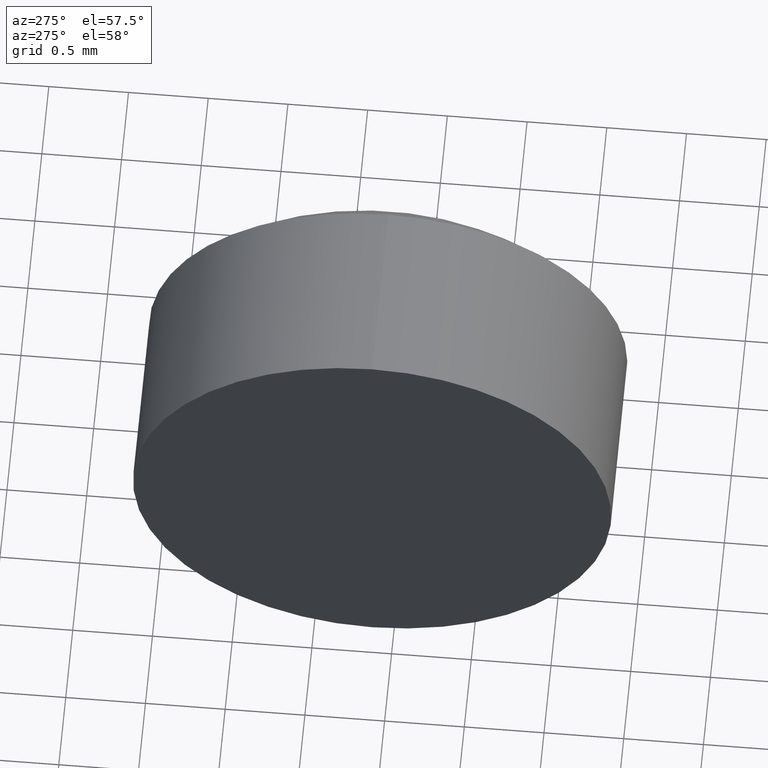
[diagram: clean part render]
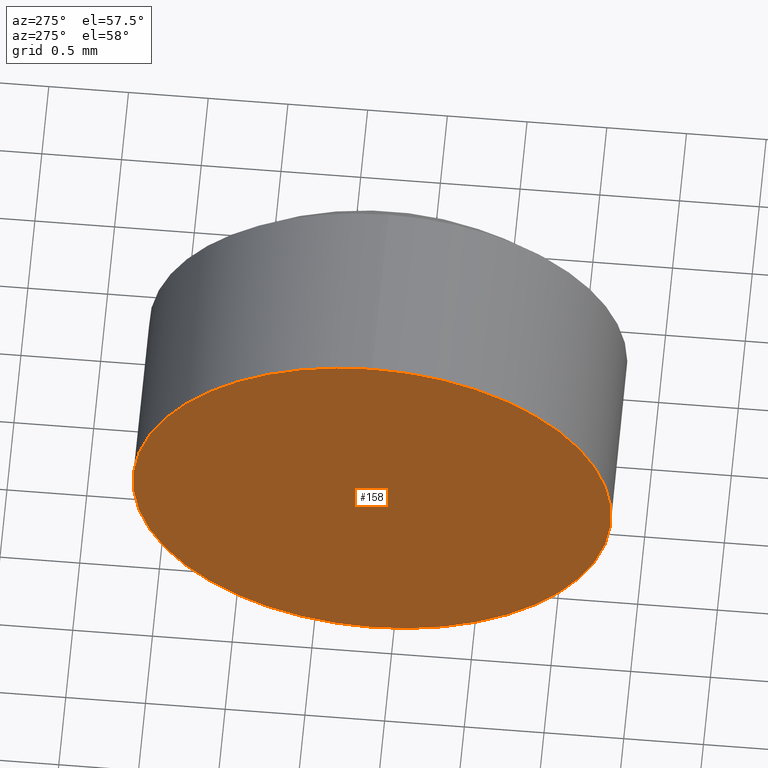
[diagram: same view with one face highlighted and labeled with its STEP entity id]
A machine part, auxiliary view. The second image highlights one B-rep face of the part: STEP entity #158.
In plain terms, the highlighted planar face has unit normal (1, 0, 0).
Its self-contained STEP definition (entity closure, byte-faithful):
#34 = DIRECTION ( 'NONE',  ( 0.0000000000000000000, 0.0000000000000000000, -1.000000000000000000 ) ) ;
#36 = ORIENTED_EDGE ( 'NONE', *, *, #54, .T. ) ;
#42 = AXIS2_PLACEMENT_3D ( 'NONE', #174, #173, #34 ) ;
#45 = CIRCLE ( 'NONE', #148, 1.499999999999999600 ) ;
#46 = AXIS2_PLACEMENT_3D ( 'NONE', #73, #107, #156 ) ;
#53 = VERTEX_POINT ( 'NONE', #103 ) ;
#54 = EDGE_CURVE ( 'NONE', #83, #53, #71, .T. ) ;
#55 = FACE_OUTER_BOUND ( 'NONE', #135, .T. ) ;
#71 = CIRCLE ( 'NONE', #46, 1.499999999999999600 ) ;
#73 = CARTESIAN_POINT ( 'NONE',  ( 658.1415812099703500, -16.36571679359241200, 0.0000000000000000000 ) ) ;
#83 = VERTEX_POINT ( 'NONE', #137 ) ;
#92 = DIRECTION ( 'NONE',  ( -1.000000000000000000, -0.0000000000000000000, -0.0000000000000000000 ) ) ;
#93 = DIRECTION ( 'NONE',  ( 0.0000000000000000000, 0.0000000000000000000, 1.000000000000000000 ) ) ;
#99 = ORIENTED_EDGE ( 'NONE', *, *, #101, .T. ) ;
#101 = EDGE_CURVE ( 'NONE', #53, #83, #45, .T. ) ;
#103 = CARTESIAN_POINT ( 'NONE',  ( 658.1415812099703500, -16.36571679359241200, 1.499999999999999600 ) ) ;
#107 = DIRECTION ( 'NONE',  ( -1.000000000000000000, -0.0000000000000000000, -0.0000000000000000000 ) ) ;
#111 = PLANE ( 'NONE',  #42 ) ;
#135 = EDGE_LOOP ( 'NONE', ( #99, #36 ) ) ;
#137 = CARTESIAN_POINT ( 'NONE',  ( 658.1415812099703500, -16.36571679359241200, -1.499999999999999600 ) ) ;
#148 = AXIS2_PLACEMENT_3D ( 'NONE', #176, #92, #93 ) ;
#156 = DIRECTION ( 'NONE',  ( 0.0000000000000000000, 0.0000000000000000000, 1.000000000000000000 ) ) ;
#158 = ADVANCED_FACE ( 'NONE', ( #55 ), #111, .F. ) ;
#173 = DIRECTION ( 'NONE',  ( 1.000000000000000000, 0.0000000000000000000, 0.0000000000000000000 ) ) ;
#174 = CARTESIAN_POINT ( 'NONE',  ( 658.1415812099703500, -16.36571679359241200, 0.0000000000000000000 ) ) ;
#176 = CARTESIAN_POINT ( 'NONE',  ( 658.1415812099703500, -16.36571679359241200, 0.0000000000000000000 ) ) ;